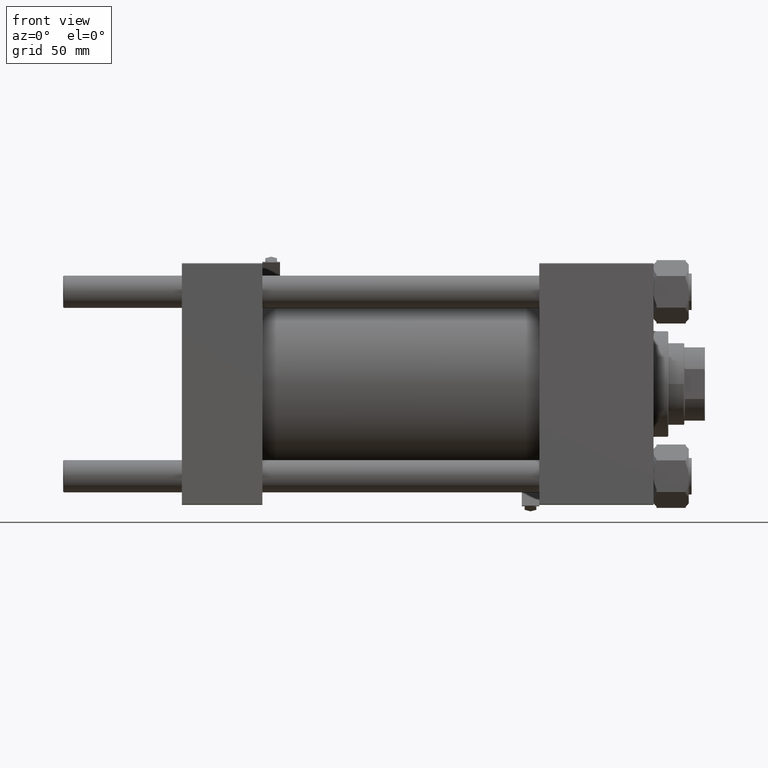
[diagram: clean part render]
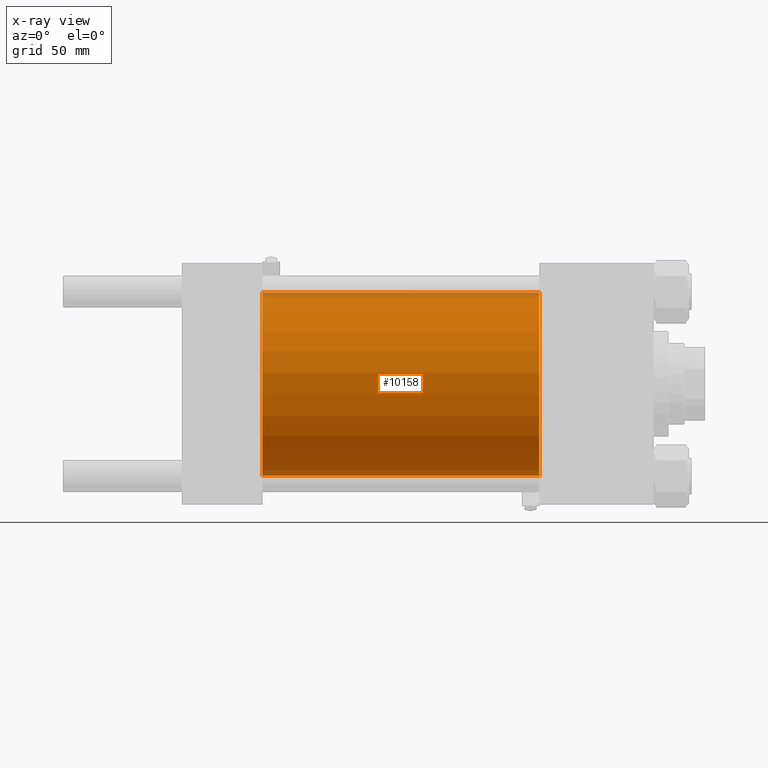
[diagram: x-ray — body ghosted, one internal face saturated and labeled with its STEP entity id]
A machine part, front view, then the same camera in x-ray: the body is ghosted and one INTERNAL B-rep face — a face not visible from any outside direction — is saturated and labeled: STEP entity #10158.
In plain terms, the highlighted cylindrical surface (partial cylindrical patch) has radius 62.5 mm, axis along (-1, -0, -0).
Its self-contained STEP definition (entity closure, byte-faithful):
#263 = CARTESIAN_POINT ( 'NONE',  ( 55.00000000000000000, 0.000000000000000000, 0.000000000000000000 ) ) ;
#404 = CARTESIAN_POINT ( 'NONE',  ( 244.0000000000000000, 0.000000000000000000, 0.000000000000000000 ) ) ;
#1653 = FACE_OUTER_BOUND ( 'NONE', #24142, .T. ) ;
#1918 = CYLINDRICAL_SURFACE ( 'NONE', #46822, 62.50000000000000000 ) ;
#3223 = EDGE_CURVE ( 'NONE', #7525, #21088, #37434, .T. ) ;
#3278 = LINE ( 'NONE', #14244, #27444 ) ;
#6918 = LINE ( 'NONE', #23542, #15731 ) ;
#7176 = DIRECTION ( 'NONE',  ( -1.000000000000000000, -0.000000000000000000, -0.000000000000000000 ) ) ;
#7525 = VERTEX_POINT ( 'NONE', #48307 ) ;
#10158 = ADVANCED_FACE ( 'NONE', ( #1653 ), #1918, .F. ) ;
#10320 = DIRECTION ( 'NONE',  ( -1.000000000000000000, -0.000000000000000000, -0.000000000000000000 ) ) ;
#11451 = EDGE_CURVE ( 'NONE', #15765, #43097, #25269, .T. ) ;
#13610 = CARTESIAN_POINT ( 'NONE',  ( 55.00000000000000000, 0.000000000000000000, 62.50000000000000000 ) ) ;
#14244 = CARTESIAN_POINT ( 'NONE',  ( 244.0000000000000000, 7.654042494670957804E-15, -62.50000000000000000 ) ) ;
#15731 = VECTOR ( 'NONE', #7176, 1000.000000000000000 ) ;
#15765 = VERTEX_POINT ( 'NONE', #13610 ) ;
#16036 = CARTESIAN_POINT ( 'NONE',  ( 55.00000000000000000, 7.654042494670957804E-15, -62.50000000000000000 ) ) ;
#17795 = DIRECTION ( 'NONE',  ( -1.000000000000000000, -0.000000000000000000, -0.000000000000000000 ) ) ;
#18383 = AXIS2_PLACEMENT_3D ( 'NONE', #404, #36519, #33590 ) ;
#21088 = VERTEX_POINT ( 'NONE', #39296 ) ;
#23542 = CARTESIAN_POINT ( 'NONE',  ( 244.0000000000000000, 0.000000000000000000, 62.50000000000000000 ) ) ;
#24142 = EDGE_LOOP ( 'NONE', ( #50840, #44551, #45604, #25522 ) ) ;
#25269 = CIRCLE ( 'NONE', #28602, 62.50000000000000000 ) ;
#25522 = ORIENTED_EDGE ( 'NONE', *, *, #26875, .F. ) ;
#25589 = CARTESIAN_POINT ( 'NONE',  ( 244.0000000000000000, 0.000000000000000000, 0.000000000000000000 ) ) ;
#26875 = EDGE_CURVE ( 'NONE', #7525, #15765, #6918, .T. ) ;
#27444 = VECTOR ( 'NONE', #10320, 1000.000000000000000 ) ;
#28329 = DIRECTION ( 'NONE',  ( 1.000000000000000000, 0.000000000000000000, 0.000000000000000000 ) ) ;
#28602 = AXIS2_PLACEMENT_3D ( 'NONE', #263, #28329, #31718 ) ;
#28957 = DIRECTION ( 'NONE',  ( 0.000000000000000000, 0.000000000000000000, 1.000000000000000000 ) ) ;
#29294 = EDGE_CURVE ( 'NONE', #21088, #43097, #3278, .T. ) ;
#31718 = DIRECTION ( 'NONE',  ( 0.000000000000000000, 0.000000000000000000, -1.000000000000000000 ) ) ;
#33590 = DIRECTION ( 'NONE',  ( 0.000000000000000000, 0.000000000000000000, -1.000000000000000000 ) ) ;
#36519 = DIRECTION ( 'NONE',  ( 1.000000000000000000, 0.000000000000000000, 0.000000000000000000 ) ) ;
#37434 = CIRCLE ( 'NONE', #18383, 62.50000000000000000 ) ;
#39296 = CARTESIAN_POINT ( 'NONE',  ( 244.0000000000000000, 7.654042494670957804E-15, -62.50000000000000000 ) ) ;
#43097 = VERTEX_POINT ( 'NONE', #16036 ) ;
#44551 = ORIENTED_EDGE ( 'NONE', *, *, #29294, .T. ) ;
#45604 = ORIENTED_EDGE ( 'NONE', *, *, #11451, .F. ) ;
#46822 = AXIS2_PLACEMENT_3D ( 'NONE', #25589, #17795, #28957 ) ;
#48307 = CARTESIAN_POINT ( 'NONE',  ( 244.0000000000000000, 0.000000000000000000, 62.50000000000000000 ) ) ;
#50840 = ORIENTED_EDGE ( 'NONE', *, *, #3223, .T. ) ;